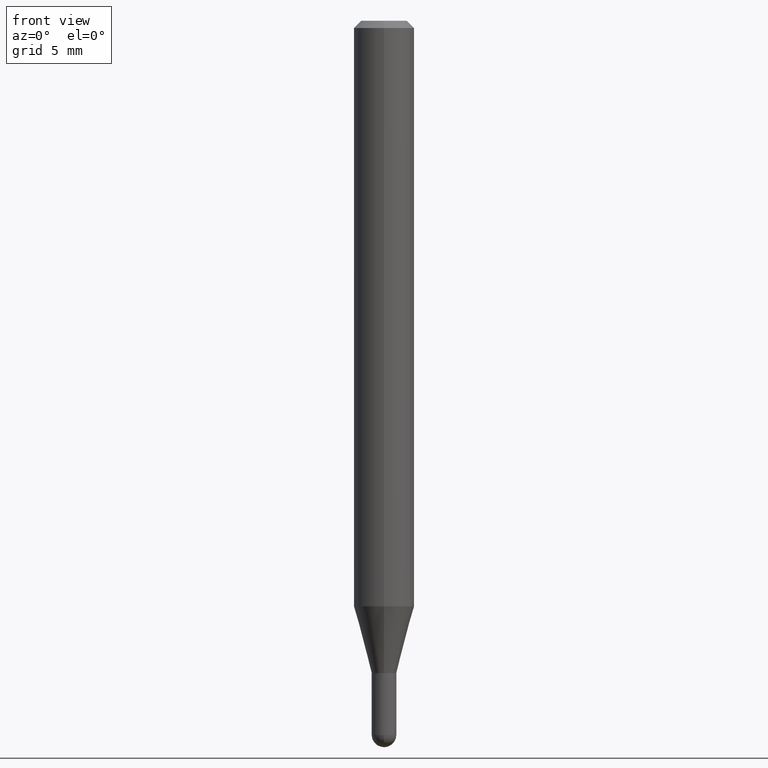
[diagram: clean part render]
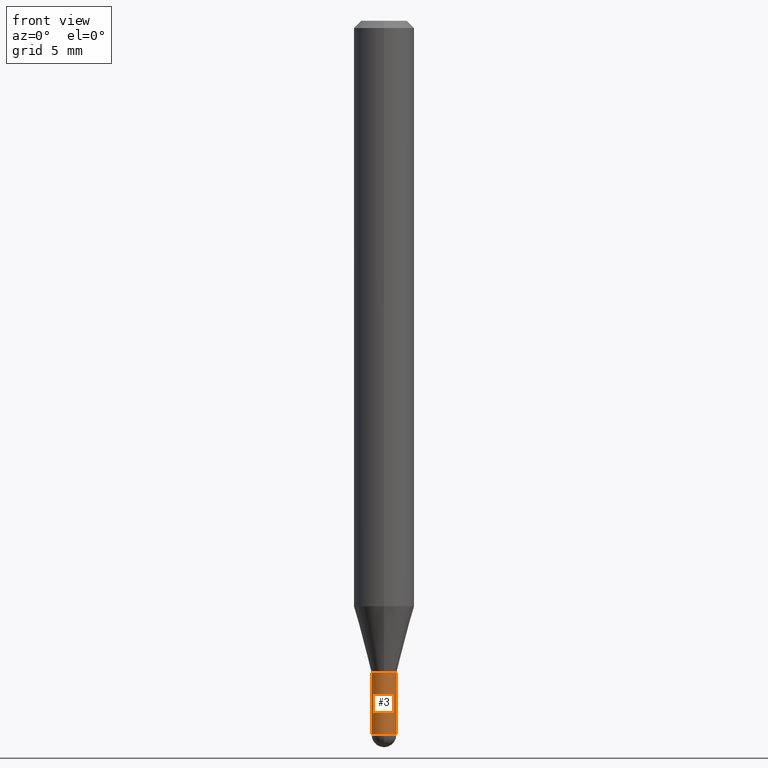
[diagram: same view with one face highlighted and labeled with its STEP entity id]
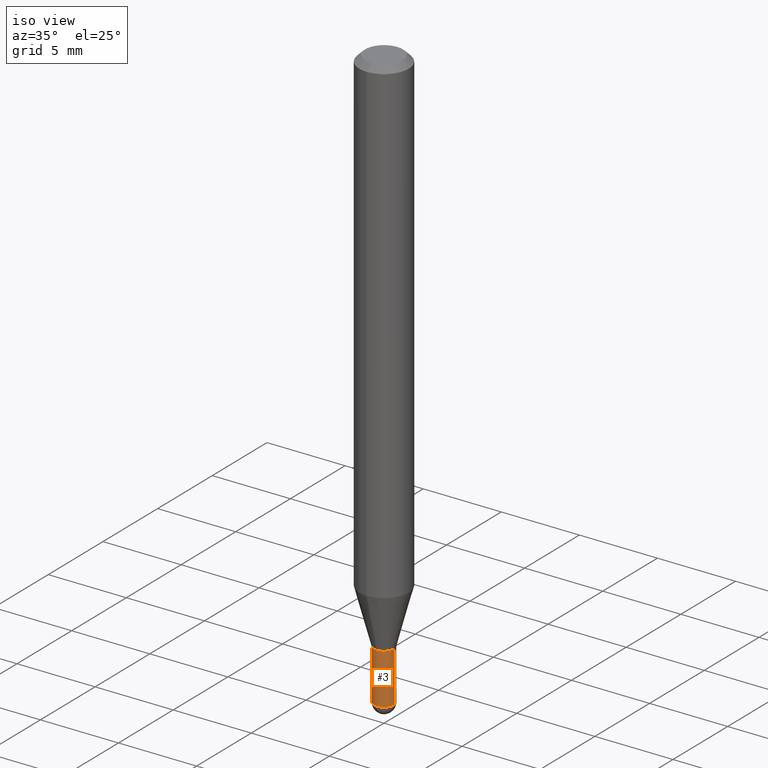
[diagram: same view with one face highlighted and labeled with its STEP entity id]
A machine part, front view. The second image highlights one B-rep face of the part: STEP entity #3.
A second angle (iso view) of the same face is appended — the face is thin or edge-on in the first view.
In plain terms, the highlighted cylindrical surface (edge-blend (fillet) strip) has radius 0.6477 mm, axis along (-0, 0, 1).
Its self-contained STEP definition (entity closure, byte-faithful):
#3 = ADVANCED_FACE ( 'NONE', ( #125 ), #133, .T. ) ;
#4 = DIRECTION ( 'NONE',  ( -2.445468806185136597E-29, 3.491481338843145583E-15, 1.000000000000000000 ) ) ;
#11 = ORIENTED_EDGE ( 'NONE', *, *, #160, .T. ) ;
#25 = CARTESIAN_POINT ( 'NONE',  ( 0.02549999999999999836, -4.881090911702717249E-15, -1.347000000000000197 ) ) ;
#30 = AXIS2_PLACEMENT_3D ( 'NONE', #234, #4, #395 ) ;
#57 = VECTOR ( 'NONE', #242, 39.37007874015748143 ) ;
#68 = AXIS2_PLACEMENT_3D ( 'NONE', #175, #108, #103 ) ;
#86 = ORIENTED_EDGE ( 'NONE', *, *, #150, .T. ) ;
#103 = DIRECTION ( 'NONE',  ( 1.000000000000000000, -6.982962677686275388E-15, 0.000000000000000000 ) ) ;
#108 = DIRECTION ( 'NONE',  ( -2.445468806185136597E-29, 3.491481338843145583E-15, 1.000000000000000000 ) ) ;
#120 = DIRECTION ( 'NONE',  ( -2.445468806185136877E-29, 3.491481338843145188E-15, 1.000000000000000000 ) ) ;
#125 = FACE_OUTER_BOUND ( 'NONE', #267, .T. ) ;
#129 = CARTESIAN_POINT ( 'NONE',  ( -1.780655482809642994E-16, -0.02550000000000523376, -1.474500000000000144 ) ) ;
#133 = CYLINDRICAL_SURFACE ( 'NONE', #226, 0.02549999999999999836 ) ;
#136 = VERTEX_POINT ( 'NONE', #425 ) ;
#150 = EDGE_CURVE ( 'NONE', #276, #136, #176, .T. ) ;
#156 = CARTESIAN_POINT ( 'NONE',  ( -0.02549999999999999836, -4.744418901154142248E-15, -1.474500000000000144 ) ) ;
#158 = LINE ( 'NONE', #349, #206 ) ;
#160 = EDGE_CURVE ( 'NONE', #419, #276, #401, .T. ) ;
#175 = CARTESIAN_POINT ( 'NONE',  ( 3.294046481931379390E-29, -4.703025363421717574E-15, -1.347000000000000197 ) ) ;
#176 = CIRCLE ( 'NONE', #30, 0.02549999999999999836 ) ;
#206 = VECTOR ( 'NONE', #120, 39.37007874015748143 ) ;
#224 = EDGE_CURVE ( 'NONE', #419, #440, #158, .T. ) ;
#226 = AXIS2_PLACEMENT_3D ( 'NONE', #321, #241, #402 ) ;
#234 = CARTESIAN_POINT ( 'NONE',  ( 3.605843754719984351E-29, -5.148189234124218339E-15, -1.474500000000000144 ) ) ;
#238 = CARTESIAN_POINT ( 'NONE',  ( -0.02549999999999999836, -4.744418901154142248E-15, -1.347000000000000197 ) ) ;
#241 = DIRECTION ( 'NONE',  ( -2.445468806185136597E-29, 3.491481338843145583E-15, 1.000000000000000000 ) ) ;
#242 = DIRECTION ( 'NONE',  ( -2.445468806185136877E-29, 3.491481338843145188E-15, 1.000000000000000000 ) ) ;
#267 = EDGE_LOOP ( 'NONE', ( #346, #11, #86, #485, #270 ) ) ;
#270 = ORIENTED_EDGE ( 'NONE', *, *, #323, .F. ) ;
#276 = VERTEX_POINT ( 'NONE', #129 ) ;
#290 = LINE ( 'NONE', #452, #57 ) ;
#308 = CARTESIAN_POINT ( 'NONE',  ( 3.605843754719984351E-29, -5.148189234124218339E-15, -1.474500000000000144 ) ) ;
#313 = VERTEX_POINT ( 'NONE', #25 ) ;
#321 = CARTESIAN_POINT ( 'NONE',  ( 0.000000000000000000, 0.000000000000000000, 0.000000000000000000 ) ) ;
#323 = EDGE_CURVE ( 'NONE', #440, #313, #357, .T. ) ;
#346 = ORIENTED_EDGE ( 'NONE', *, *, #224, .F. ) ;
#349 = CARTESIAN_POINT ( 'NONE',  ( -0.02549999999999999836, 1.811883976188255358E-16, -1.254328448015001021E-30 ) ) ;
#357 = CIRCLE ( 'NONE', #68, 0.02549999999999999836 ) ;
#392 = AXIS2_PLACEMENT_3D ( 'NONE', #308, #434, #397 ) ;
#395 = DIRECTION ( 'NONE',  ( 1.000000000000000000, -6.982962677686275388E-15, 0.000000000000000000 ) ) ;
#397 = DIRECTION ( 'NONE',  ( 1.000000000000000000, -6.982962677686275388E-15, 0.000000000000000000 ) ) ;
#401 = CIRCLE ( 'NONE', #392, 0.02549999999999999836 ) ;
#402 = DIRECTION ( 'NONE',  ( 1.000000000000000000, -6.982962677686266711E-15, 4.876176775795935793E-29 ) ) ;
#419 = VERTEX_POINT ( 'NONE', #156 ) ;
#425 = CARTESIAN_POINT ( 'NONE',  ( 0.02549999999999999836, -5.103672847053968026E-15, -1.474500000000000144 ) ) ;
#434 = DIRECTION ( 'NONE',  ( -2.445468806185136597E-29, 3.491481338843145583E-15, 1.000000000000000000 ) ) ;
#440 = VERTEX_POINT ( 'NONE', #238 ) ;
#452 = CARTESIAN_POINT ( 'NONE',  ( 0.02549999999999999836, -1.780655482809997982E-16, 1.243425077827963501E-30 ) ) ;
#485 = ORIENTED_EDGE ( 'NONE', *, *, #494, .T. ) ;
#494 = EDGE_CURVE ( 'NONE', #136, #313, #290, .T. ) ;